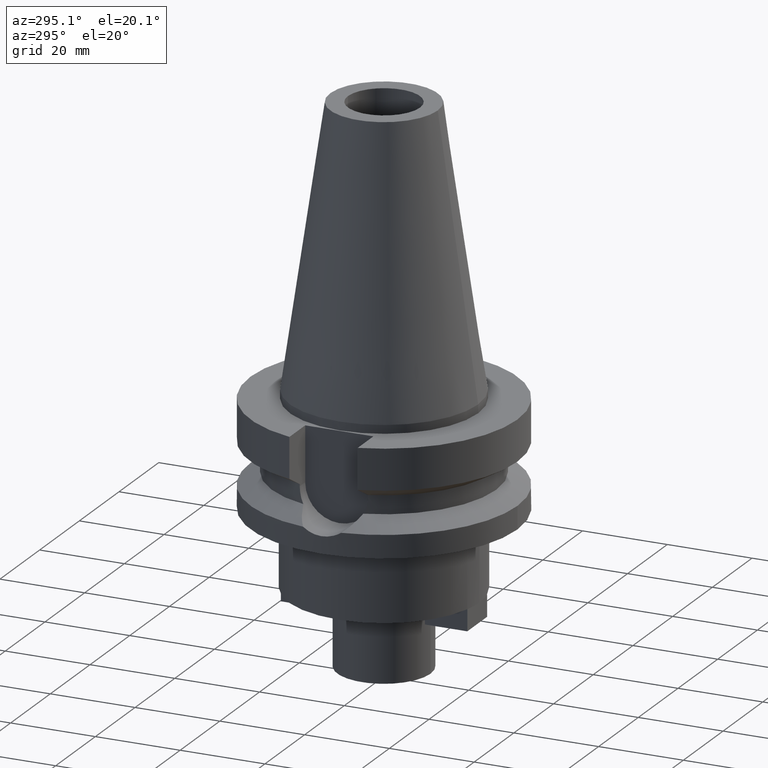
[diagram: clean part render]
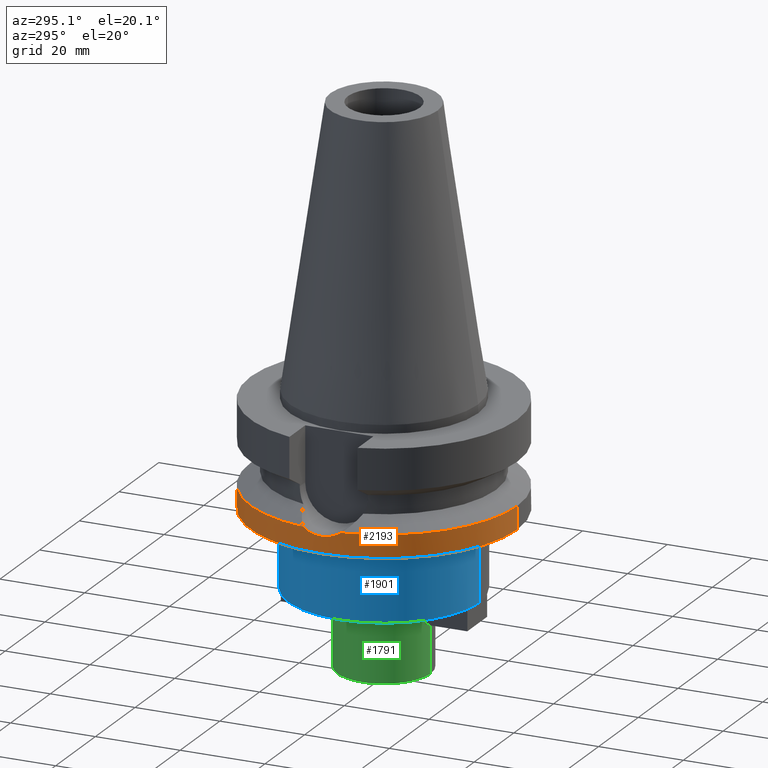
[diagram: same view with three faces highlighted in distinct colors, each labeled with its STEP entity id]
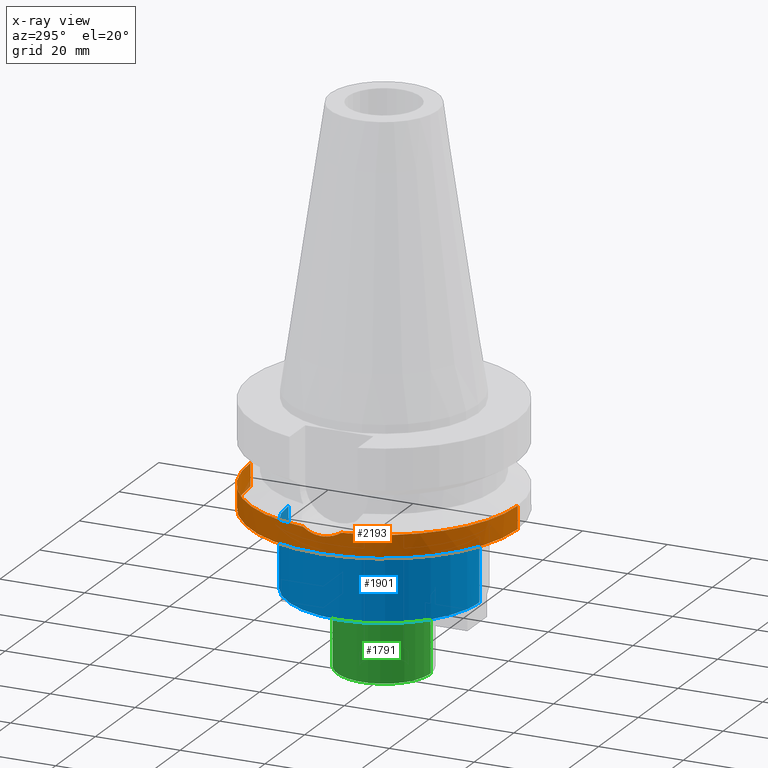
[diagram: x-ray of the same camera — body ghosted, the three highlighted faces saturated]
A machine part, auxiliary view with three faces highlighted in distinct colors.
The next image is the same camera in x-ray (body ghosted, the three faces saturated) — at least one of them is partly hidden behind the body in this view.
Their STEP definitions:

[orange] entity #2193 — the highlighted cylindrical surface (partial cylindrical patch) has radius 31.5 mm, axis along (0, 0, -1).
#652=CARTESIAN_POINT('',(0.E0,2.104188130295E-14,-2.7E1));
#653=DIRECTION('',(0.E0,0.E0,1.E0));
#654=DIRECTION('',(0.E0,1.E0,0.E0));
#655=AXIS2_PLACEMENT_3D('',#652,#653,#654);
#696=DIRECTION('',(0.E0,1.099151708819E-13,-1.E0));
#697=VECTOR('',#696,5.365505652669E0);
#698=CARTESIAN_POINT('',(0.E0,3.15E1,-2.163449434733E1));
#699=LINE('',#698,#697);
#717=CARTESIAN_POINT('',(-3.117899877609E1,-4.485536235554E0,
-2.163449434733E1));
#765=CARTESIAN_POINT('',(0.E0,0.E0,-2.163449434733E1));
#766=DIRECTION('',(0.E0,0.E0,-1.E0));
#767=DIRECTION('',(0.E0,-1.E0,0.E0));
#768=AXIS2_PLACEMENT_3D('',#765,#766,#767);
#787=CARTESIAN_POINT('',(-3.117899877609E1,4.485536235554E0,-2.163449434733E1));
#788=CARTESIAN_POINT('',(-3.124427832171E1,4.031777584184E0,-2.193898273002E1));
#789=CARTESIAN_POINT('',(-3.135978968844E1,3.087815903632E0,-2.243983288616E1));
#790=CARTESIAN_POINT('',(-3.147334557579E1,1.577450766790E0,-2.289663798283E1));
#791=CARTESIAN_POINT('',(-3.151357536681E1,-1.065504629214E-2,
-2.305265446859E1));
#792=CARTESIAN_POINT('',(-3.147234320772E1,-1.595536507939E0,
-2.289270828321E1));
#793=CARTESIAN_POINT('',(-3.135856829977E1,-3.098768316796E0,
-2.243470717265E1));
#794=CARTESIAN_POINT('',(-3.124373084573E1,-4.035583094130E0,
-2.193642909591E1));
#795=CARTESIAN_POINT('',(-3.117899877609E1,-4.485536235554E0,
-2.163449434733E1));
#800=DIRECTION('',(0.E0,-1.105773104655E-13,-1.E0));
#801=VECTOR('',#800,5.365505652669E0);
#802=CARTESIAN_POINT('',(0.E0,-3.15E1,-2.163449434733E1));
#803=LINE('',#802,#801);
#814=CARTESIAN_POINT('',(-3.117899877609E1,4.485536235554E0,-2.163449434733E1));
#819=CARTESIAN_POINT('',(0.E0,0.E0,-2.163449434733E1));
#820=DIRECTION('',(0.E0,0.E0,-1.E0));
#821=DIRECTION('',(-9.898094849553E-1,1.423979757319E-1,0.E0));
#822=AXIS2_PLACEMENT_3D('',#819,#820,#821);
#1397=CARTESIAN_POINT('',(0.E0,-3.15E1,-2.7E1));
#1398=CARTESIAN_POINT('',(0.E0,3.15E1,-2.7E1));
#1399=VERTEX_POINT('',#1397);
#1400=VERTEX_POINT('',#1398);
#1404=CARTESIAN_POINT('',(0.E0,3.15E1,-2.163449434733E1));
#1405=VERTEX_POINT('',#1404);
#1406=CARTESIAN_POINT('',(0.E0,-3.15E1,-2.163449434733E1));
#1407=VERTEX_POINT('',#1406);
#1419=VERTEX_POINT('',#717);
#1424=VERTEX_POINT('',#814);
#2179=CARTESIAN_POINT('',(0.E0,2.104188130295E-14,7.182E1));
#2180=DIRECTION('',(0.E0,0.E0,-1.E0));
#2181=DIRECTION('',(0.E0,-1.E0,0.E0));
#2182=AXIS2_PLACEMENT_3D('',#2179,#2180,#2181);
#2183=CYLINDRICAL_SURFACE('',#2182,3.15E1);
#2184=ORIENTED_EDGE('',*,*,#2160,.T.);
#2185=ORIENTED_EDGE('',*,*,#2149,.F.);
#2186=ORIENTED_EDGE('',*,*,#2103,.T.);
#2187=ORIENTED_EDGE('',*,*,#2080,.F.);
#2188=ORIENTED_EDGE('',*,*,#2100,.F.);
#2190=ORIENTED_EDGE('',*,*,#2189,.F.);
#2191=EDGE_LOOP('',(#2184,#2185,#2186,#2187,#2188,#2190));
#2192=FACE_OUTER_BOUND('',#2191,.F.);
#656=CIRCLE('',#655,3.15E1);
#769=CIRCLE('',#768,3.15E1);
#796=B_SPLINE_CURVE_WITH_KNOTS('',3,(#787,#788,#789,#790,#791,#792,#793,#794,
#795),.UNSPECIFIED.,.F.,.F.,(4,1,1,1,1,1,4),(0.E0,1.666666666667E-1,
3.333333333333E-1,5.E-1,6.666666666667E-1,8.333333333333E-1,1.E0),
.UNSPECIFIED.);
#823=CIRCLE('',#822,3.15E1);
#2080=EDGE_CURVE('',#1400,#1399,#656,.T.);
#2100=EDGE_CURVE('',#1405,#1400,#699,.T.);
#2103=EDGE_CURVE('',#1407,#1399,#803,.T.);
#2149=EDGE_CURVE('',#1407,#1419,#769,.T.);
#2160=EDGE_CURVE('',#1424,#1419,#796,.T.);
#2189=EDGE_CURVE('',#1424,#1405,#823,.T.);
#2193=ADVANCED_FACE('',(#2192),#2183,.T.);

[blue] entity #1901 — the highlighted cylindrical surface (partial cylindrical patch) has radius 22.5 mm, axis along (0, 0, -1).
#367=CARTESIAN_POINT('',(0.E0,2.104188130295E-14,-4.5E1));
#368=DIRECTION('',(0.E0,0.E0,1.E0));
#369=DIRECTION('',(-2.222222222222E-1,9.749960430436E-1,0.E0));
#370=AXIS2_PLACEMENT_3D('',#367,#368,#369);
#447=CARTESIAN_POINT('',(0.E0,2.104188130295E-14,-4.5E1));
#448=DIRECTION('',(0.E0,0.E0,1.E0));
#449=DIRECTION('',(-2.222222222222E-1,-9.749960430436E-1,0.E0));
#450=AXIS2_PLACEMENT_3D('',#447,#448,#449);
#455=DIRECTION('',(0.E0,0.E0,-1.E0));
#456=VECTOR('',#455,1.5E1);
#457=CARTESIAN_POINT('',(0.E0,-2.25E1,-3.E1));
#458=LINE('',#457,#456);
#462=CARTESIAN_POINT('',(0.E0,2.104188130295E-14,-4.5E1));
#463=DIRECTION('',(0.E0,0.E0,1.E0));
#464=DIRECTION('',(-2.096440251568E-1,9.777777777778E-1,0.E0));
#465=AXIS2_PLACEMENT_3D('',#462,#463,#464);
#534=DIRECTION('',(0.E0,0.E0,-1.E0));
#535=VECTOR('',#534,1.5E1);
#536=CARTESIAN_POINT('',(0.E0,2.25E1,-3.E1));
#537=LINE('',#536,#535);
#584=CARTESIAN_POINT('',(0.E0,2.104188130295E-14,-4.5E1));
#585=DIRECTION('',(0.E0,0.E0,1.E0));
#586=DIRECTION('',(-2.096440251568E-1,-9.777777777778E-1,0.E0));
#587=AXIS2_PLACEMENT_3D('',#584,#585,#586);
#636=CARTESIAN_POINT('',(0.E0,0.E0,-3.E1));
#637=DIRECTION('',(0.E0,0.E0,-1.E0));
#638=DIRECTION('',(0.E0,-1.E0,0.E0));
#639=AXIS2_PLACEMENT_3D('',#636,#637,#638);
#1235=CARTESIAN_POINT('',(0.E0,2.104188130295E-14,-4.5E1));
#1236=DIRECTION('',(0.E0,0.E0,1.E0));
#1237=DIRECTION('',(0.E0,1.E0,0.E0));
#1238=AXIS2_PLACEMENT_3D('',#1235,#1236,#1237);
#1342=CARTESIAN_POINT('',(-4.716990566028E0,2.2E1,-4.5E1));
#1344=VERTEX_POINT('',#1342);
#1345=CARTESIAN_POINT('',(0.E0,2.25E1,-4.5E1));
#1346=VERTEX_POINT('',#1345);
#1357=CARTESIAN_POINT('',(-5.E0,2.193741096848E1,-4.5E1));
#1358=VERTEX_POINT('',#1357);
#1359=CARTESIAN_POINT('',(-5.E0,-2.193741096848E1,-4.5E1));
#1360=VERTEX_POINT('',#1359);
#1363=CARTESIAN_POINT('',(-4.716990566028E0,-2.2E1,-4.5E1));
#1365=VERTEX_POINT('',#1363);
#1367=CARTESIAN_POINT('',(0.E0,-2.25E1,-4.5E1));
#1368=VERTEX_POINT('',#1367);
#1377=CARTESIAN_POINT('',(0.E0,-2.25E1,-3.E1));
#1378=VERTEX_POINT('',#1377);
#1379=CARTESIAN_POINT('',(0.E0,2.25E1,-3.E1));
#1380=VERTEX_POINT('',#1379);
#1880=CARTESIAN_POINT('',(0.E0,2.104188130295E-14,7.182E1));
#1881=DIRECTION('',(0.E0,0.E0,-1.E0));
#1882=DIRECTION('',(0.E0,-1.E0,0.E0));
#1883=AXIS2_PLACEMENT_3D('',#1880,#1881,#1882);
#1884=CYLINDRICAL_SURFACE('',#1883,2.25E1);
#1885=ORIENTED_EDGE('',*,*,#1872,.F.);
#1886=ORIENTED_EDGE('',*,*,#1807,.F.);
#1888=ORIENTED_EDGE('',*,*,#1887,.F.);
#1890=ORIENTED_EDGE('',*,*,#1889,.F.);
#1892=ORIENTED_EDGE('',*,*,#1891,.F.);
#1894=ORIENTED_EDGE('',*,*,#1893,.F.);
#1896=ORIENTED_EDGE('',*,*,#1895,.T.);
#1898=ORIENTED_EDGE('',*,*,#1897,.F.);
#1899=EDGE_LOOP('',(#1885,#1886,#1888,#1890,#1892,#1894,#1896,#1898));
#1900=FACE_OUTER_BOUND('',#1899,.F.);
#371=CIRCLE('',#370,2.25E1);
#451=CIRCLE('',#450,2.25E1);
#466=CIRCLE('',#465,2.25E1);
#588=CIRCLE('',#587,2.25E1);
#640=CIRCLE('',#639,2.25E1);
#1239=CIRCLE('',#1238,2.25E1);
#1807=EDGE_CURVE('',#1358,#1360,#371,.T.);
#1872=EDGE_CURVE('',#1360,#1365,#451,.T.);
#1887=EDGE_CURVE('',#1344,#1358,#466,.T.);
#1889=EDGE_CURVE('',#1346,#1344,#1239,.T.);
#1891=EDGE_CURVE('',#1380,#1346,#537,.T.);
#1893=EDGE_CURVE('',#1378,#1380,#640,.T.);
#1895=EDGE_CURVE('',#1378,#1368,#458,.T.);
#1897=EDGE_CURVE('',#1365,#1368,#588,.T.);
#1901=ADVANCED_FACE('',(#1900),#1884,.T.);

[green] entity #1791 — the highlighted cylindrical surface (partial cylindrical patch) has radius 11 mm, axis along (0, 0, -1).
#300=CARTESIAN_POINT('',(0.E0,2.104188130295E-14,-6.3E1));
#301=DIRECTION('',(0.E0,0.E0,1.E0));
#302=DIRECTION('',(0.E0,1.E0,0.E0));
#303=AXIS2_PLACEMENT_3D('',#300,#301,#302);
#324=DIRECTION('',(0.E0,0.E0,-1.E0));
#325=VECTOR('',#324,1.8E1);
#326=CARTESIAN_POINT('',(0.E0,1.1E1,-4.5E1));
#327=LINE('',#326,#325);
#331=DIRECTION('',(0.E0,0.E0,-1.E0));
#332=VECTOR('',#331,1.8E1);
#333=CARTESIAN_POINT('',(0.E0,-1.1E1,-4.5E1));
#334=LINE('',#333,#332);
#382=CARTESIAN_POINT('',(0.E0,2.104188130295E-14,-4.5E1));
#383=DIRECTION('',(0.E0,0.E0,-1.E0));
#384=DIRECTION('',(0.E0,-1.E0,0.E0));
#385=AXIS2_PLACEMENT_3D('',#382,#383,#384);
#1333=CARTESIAN_POINT('',(0.E0,-1.1E1,-6.3E1));
#1334=CARTESIAN_POINT('',(0.E0,1.1E1,-6.3E1));
#1335=VERTEX_POINT('',#1333);
#1336=VERTEX_POINT('',#1334);
#1337=CARTESIAN_POINT('',(0.E0,1.1E1,-4.5E1));
#1338=VERTEX_POINT('',#1337);
#1339=CARTESIAN_POINT('',(0.E0,-1.1E1,-4.5E1));
#1340=VERTEX_POINT('',#1339);
#1779=CARTESIAN_POINT('',(0.E0,2.104188130295E-14,7.182E1));
#1780=DIRECTION('',(0.E0,0.E0,-1.E0));
#1781=DIRECTION('',(0.E0,-1.E0,0.E0));
#1782=AXIS2_PLACEMENT_3D('',#1779,#1780,#1781);
#1783=CYLINDRICAL_SURFACE('',#1782,1.1E1);
#1784=ORIENTED_EDGE('',*,*,#1769,.F.);
#1786=ORIENTED_EDGE('',*,*,#1785,.F.);
#1787=ORIENTED_EDGE('',*,*,#1772,.T.);
#1788=ORIENTED_EDGE('',*,*,#1755,.F.);
#1789=EDGE_LOOP('',(#1784,#1786,#1787,#1788));
#1790=FACE_OUTER_BOUND('',#1789,.F.);
#304=CIRCLE('',#303,1.1E1);
#386=CIRCLE('',#385,1.1E1);
#1755=EDGE_CURVE('',#1336,#1335,#304,.T.);
#1769=EDGE_CURVE('',#1338,#1336,#327,.T.);
#1772=EDGE_CURVE('',#1340,#1335,#334,.T.);
#1785=EDGE_CURVE('',#1340,#1338,#386,.T.);
#1791=ADVANCED_FACE('',(#1790),#1783,.T.);